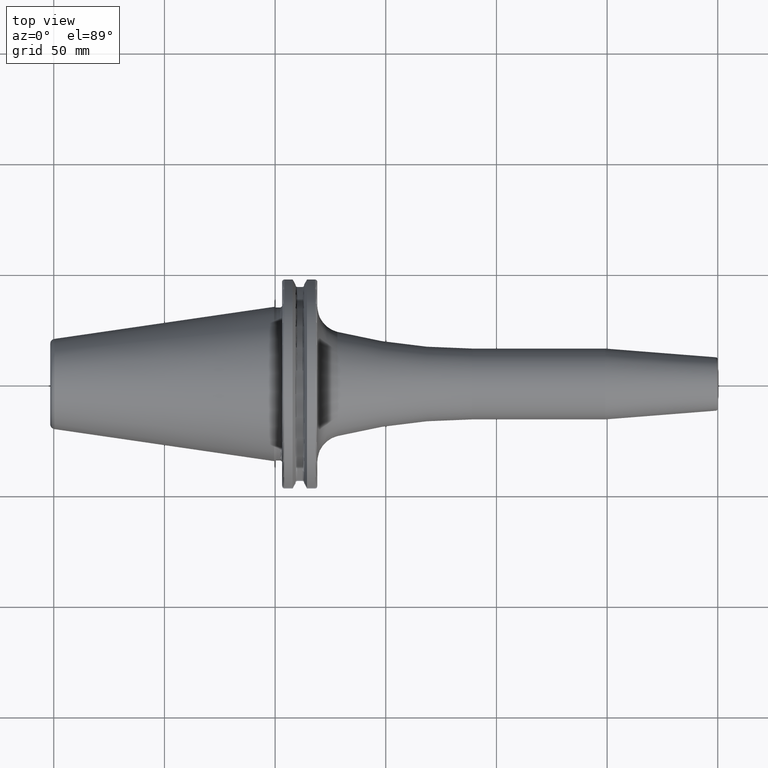
[diagram: clean part render]
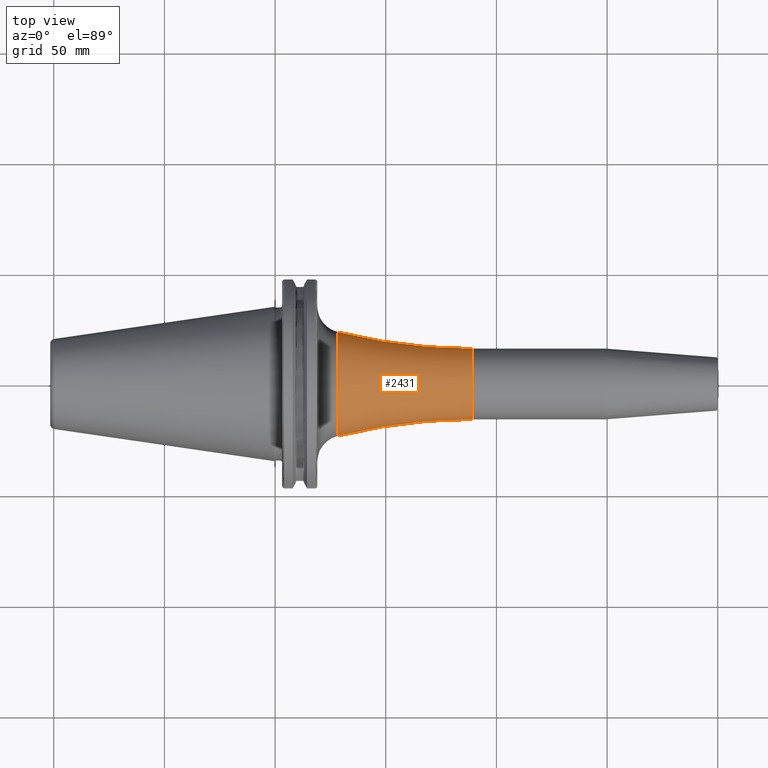
[diagram: same view with one face highlighted and labeled with its STEP entity id]
A machine part, top view. The second image highlights one B-rep face of the part: STEP entity #2431.
In plain terms, the highlighted toroidal blend (fillet) surface has major radius 266 mm and minor (blend) radius 250 mm.
Its self-contained STEP definition (entity closure, byte-faithful):
#906=CARTESIAN_POINT('',(2.812563025210E1,0.E0,0.E0));
#907=DIRECTION('',(1.E0,0.E0,0.E0));
#908=DIRECTION('',(0.E0,1.E0,0.E0));
#909=AXIS2_PLACEMENT_3D('',#906,#907,#908);
#916=CARTESIAN_POINT('',(8.905E1,-2.66E2,-6.515120971464E-14));
#917=DIRECTION('',(0.E0,0.E0,1.E0));
#918=DIRECTION('',(0.E0,1.E0,0.E0));
#919=AXIS2_PLACEMENT_3D('',#916,#917,#918);
#921=CARTESIAN_POINT('',(8.905E1,2.66E2,3.257560485732E-14));
#922=DIRECTION('',(0.E0,0.E0,-1.E0));
#923=DIRECTION('',(0.E0,-1.E0,0.E0));
#924=AXIS2_PLACEMENT_3D('',#921,#922,#923);
#944=CARTESIAN_POINT('',(8.905E1,0.E0,0.E0));
#945=DIRECTION('',(1.E0,0.E0,0.E0));
#946=DIRECTION('',(0.E0,1.E0,0.E0));
#947=AXIS2_PLACEMENT_3D('',#944,#945,#946);
#1472=CARTESIAN_POINT('',(8.905E1,1.6E1,0.E0));
#1473=CARTESIAN_POINT('',(8.905E1,-1.6E1,0.E0));
#1474=VERTEX_POINT('',#1472);
#1475=VERTEX_POINT('',#1473);
#1480=CARTESIAN_POINT('',(2.812563025210E1,-2.353717569322E1,0.E0));
#1481=CARTESIAN_POINT('',(2.812563025210E1,2.353717569322E1,0.E0));
#1482=VERTEX_POINT('',#1480);
#1483=VERTEX_POINT('',#1481);
#2417=CARTESIAN_POINT('',(8.905E1,0.E0,0.E0));
#2418=DIRECTION('',(1.E0,0.E0,0.E0));
#2419=DIRECTION('',(0.E0,-1.E0,0.E0));
#2420=AXIS2_PLACEMENT_3D('',#2417,#2418,#2419);
#2421=TOROIDAL_SURFACE('',#2420,2.66E2,2.5E2);
#2422=ORIENTED_EDGE('',*,*,#2411,.F.);
#2424=ORIENTED_EDGE('',*,*,#2423,.F.);
#2426=ORIENTED_EDGE('',*,*,#2425,.T.);
#2428=ORIENTED_EDGE('',*,*,#2427,.T.);
#2429=EDGE_LOOP('',(#2422,#2424,#2426,#2428));
#2430=FACE_OUTER_BOUND('',#2429,.F.);
#2431=ADVANCED_FACE('',(#2430),#2421,.F.);
#910=CIRCLE('',#909,2.353717569322E1);
#920=CIRCLE('',#919,2.5E2);
#925=CIRCLE('',#924,2.5E2);
#948=CIRCLE('',#947,1.6E1);
#2411=EDGE_CURVE('',#1483,#1482,#910,.T.);
#2423=EDGE_CURVE('',#1474,#1483,#925,.T.);
#2425=EDGE_CURVE('',#1474,#1475,#948,.T.);
#2427=EDGE_CURVE('',#1475,#1482,#920,.T.);